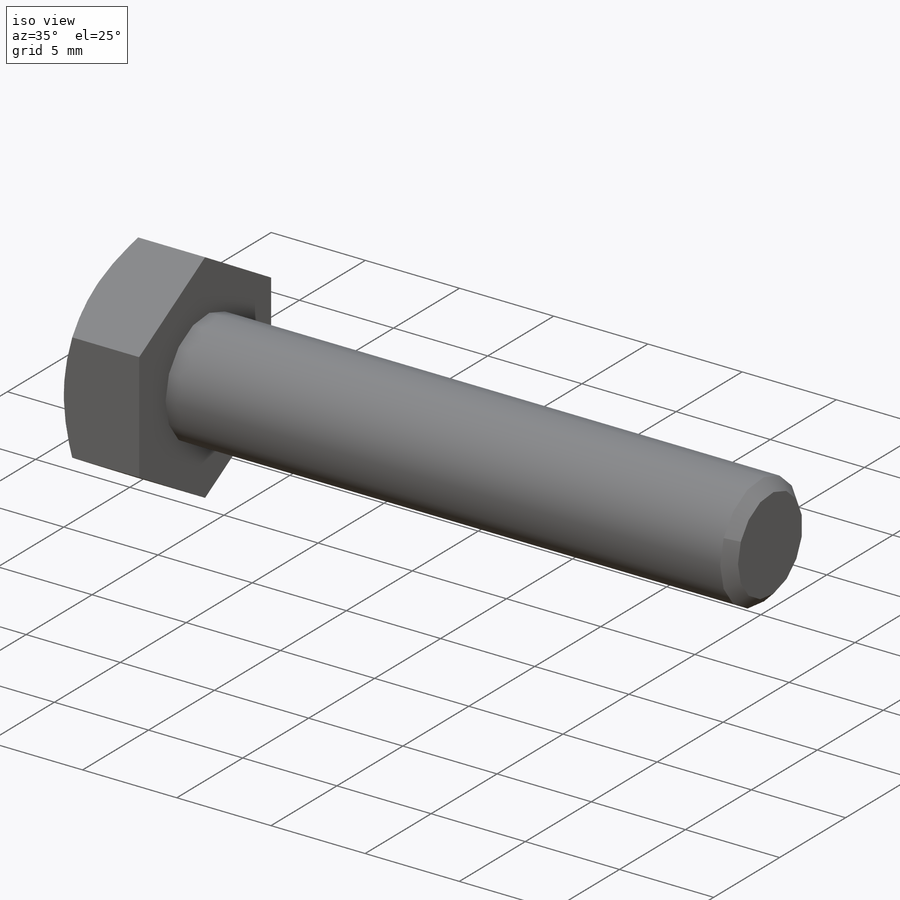
[diagram: iso view]
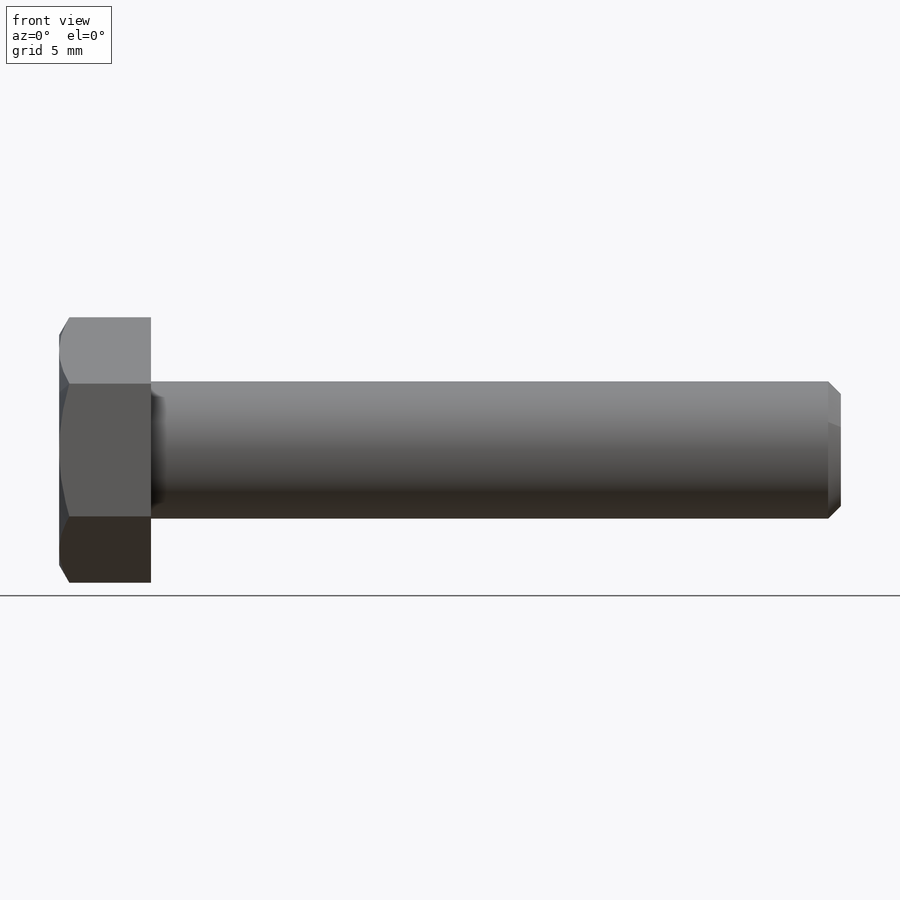
[diagram: front view]
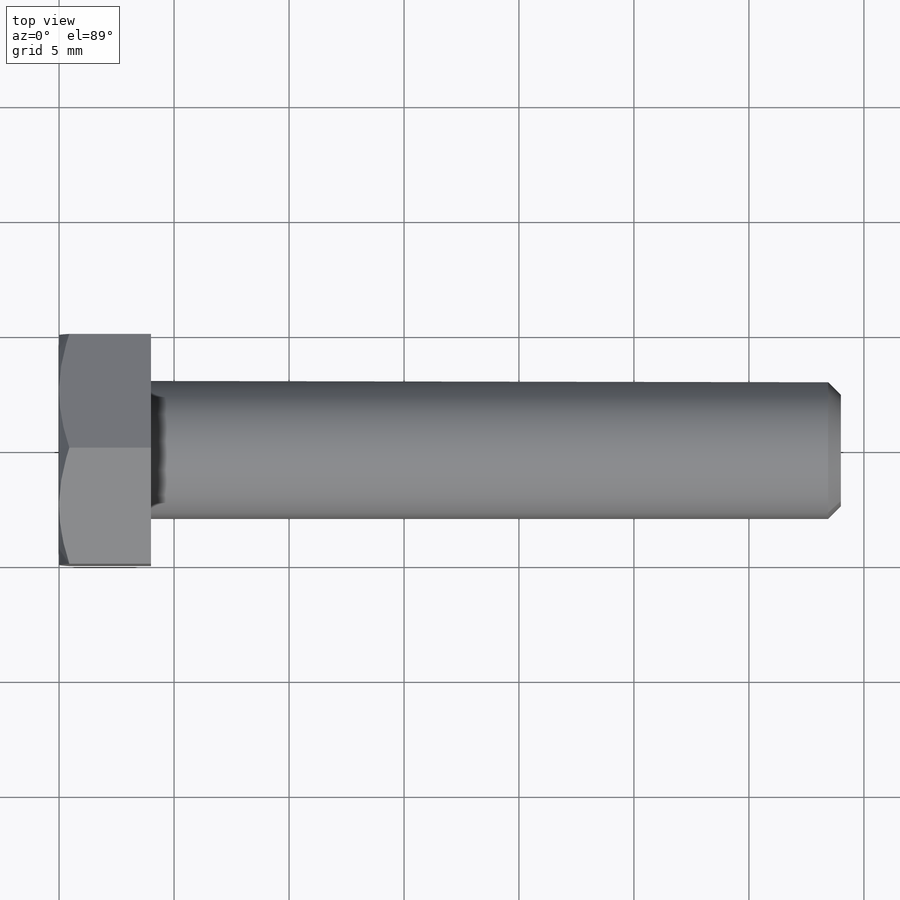
[diagram: top view]
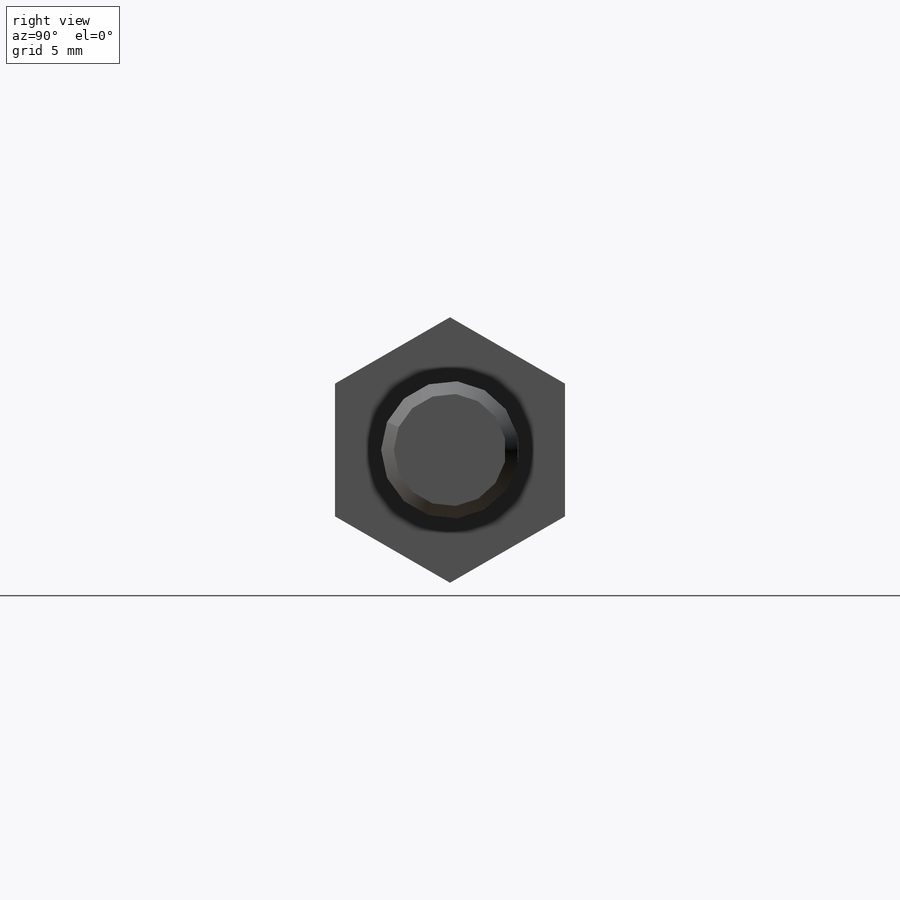
[diagram: right view]
SOLIDWORKS PART (.sldprt)
format: sldprt  version: not decoded by parser v0  size: 742,400 bytes
history: native  units: mm
features: sketch x4, plane x3, cut_revolve x2, material x1, extrude x1, revolve x1, thread x1, fillet x1, pattern_linear x1 (+8 scaffold rows collapsed)
feature tree (23):
  scaffold x8  (default folders/planes/origin — collapsed)
  material  "Материал <не указан>"
  plane  "Plane1"
  plane  "Plane2"
  plane  "Plane3"
  sketch  "Sketch1"  dims[c1.Width_flats=14.0mm c1.D2=~28.740898mm c2.D2=120.0deg c2.D3=7.0mm c2.D4=7.0mm c2.D5=7.0mm]
  extrude  "BaseHead"  Depth=6.4mm Head_ht=6.4mm
  sketch  "BodySke"  dims[c1.Length=40.0mm c1.D1=88.646mm c1.Body_ch_ang=45.0deg c1.Diameter=20.0mm c1.Minor_dia=17.252mm c1.Advance=1.5mm c1.Thread_nom=40.0mm c1.Thread_lim=74.0918mm c2.Diameter=20.0mm c2.D1=~1.943129mm c2.Body_ch_ang=45.0deg c2.D2=~2.418983mm c3.D2=45.0deg c3.D3=110.49mm c4.D3=~179.980853deg c5.D3=110.49mm c6.D3=~0.019147deg c7.D3=~0.034254mm c7.Minor_dia=8.344mm c7.Undercut_dia=18.2mm c8.D3=~2.298157mm c9.D3=45.0deg c9.Diameter=10.0mm]
  revolve  "BaseBody"  [1 undecoded]
  thread  "ThreadCosmetic"  Diameter=38.5mm Thread_length=38.5mm Thread_minor=8.344mm  [1 undecoded]
  fillet  "HeadFillet"  Radius=0.4mm Fillet_radius=0.4mm
  sketch  "Sketch3"  dims[c1.D1=7.0mm c1.D2=5.0mm c1.D3=12.7mm c1.D4=~10.11241mm c1.Head_ch_ang=60.0deg c2.D4=~7.048769mm c2.D3=10.0mm c3.D4=5.0mm c3.D5=~11.302462mm c3.Head_ch_ang=30.0deg]
  cut_revolve  "HeadChamfer"  Angle=360deg
  sketch  "ThdSchSke"  dims[c1.Thread_minor=~1.03886mm c1.Diameter=~1.413535mm c1.Start=~0.988134mm c1.D4=~4.446753mm c1.Vee=60.0deg c2.Thread_minor=~1.03886mm c2.Start=~2.540025mm c2.D1=~0.108159mm c2.D2=~0.108159mm c3.D1=~0.216319mm c3.SideAngle=55.0deg c3.D2=~0.216319mm c3.VeeAngle=70.0deg c3.Thread_minor=8.344mm c3.Overcut=12.5mm c3.Diameter=10.0mm c3.D6=~8.326268mm c4.D1=~8.326268mm c5.D1=90.0deg c5.Start=63.5mm c6.Start=140.4874mm c7.Start=7.9mm]
  cut_revolve  "ThreadSchematic"  Angle=360deg
  pattern_linear  "ThdSchPat"  Count1=26 Count2=1 Spacing1=1.480769mm Spacing2=50mm Num_threads=26 Advance=1.480769mm
decode coverage: 10 of 11 modeling features carry decoded parameters
note: ~ marks probable driven/reference dimensions
note: 2 parameter values undecoded
note: suppression state not decoded; provenance and decode notes live in map.json
